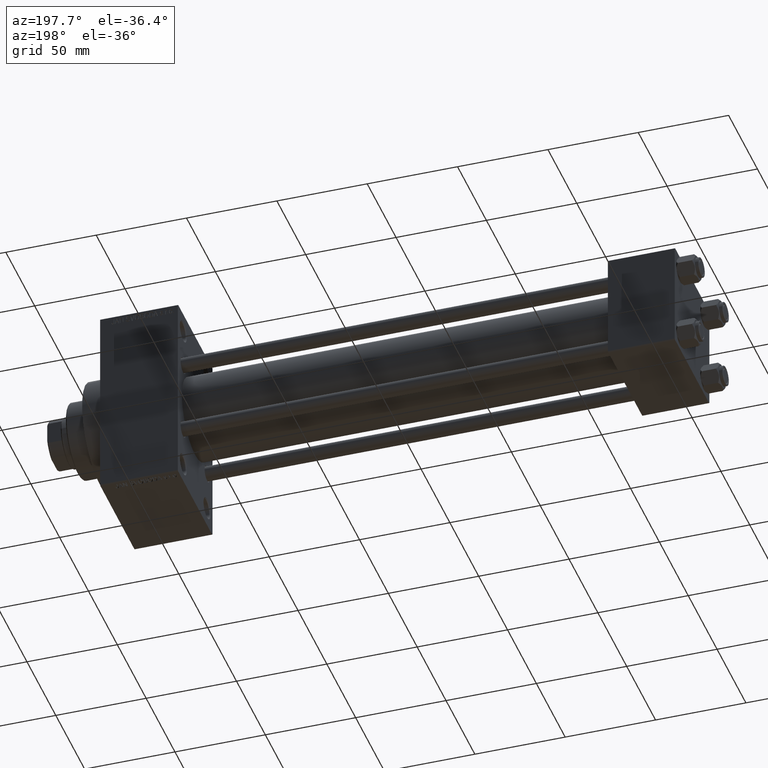
[diagram: clean part render]
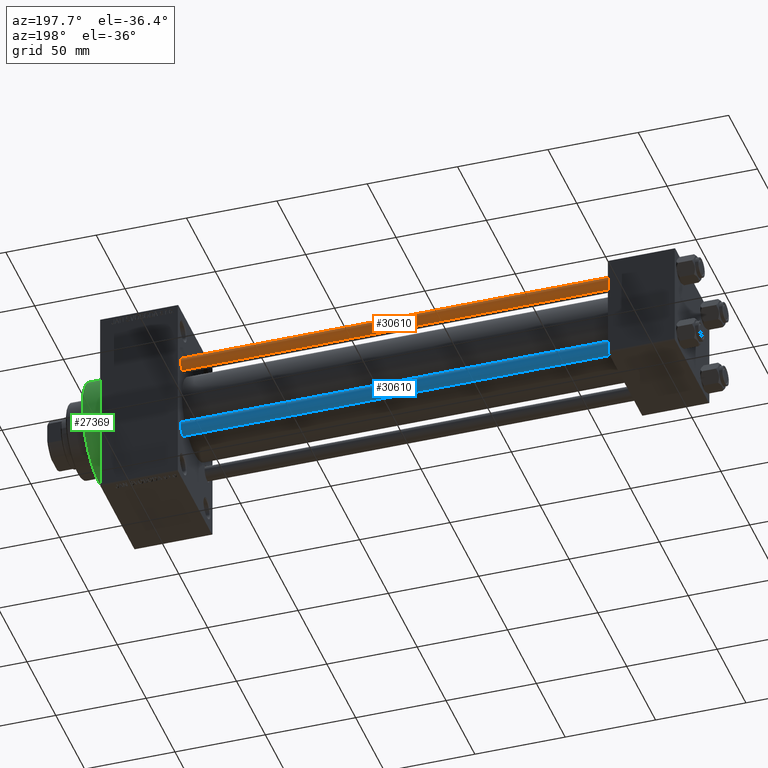
[diagram: same view with three faces highlighted in distinct colors, each labeled with its STEP entity id]
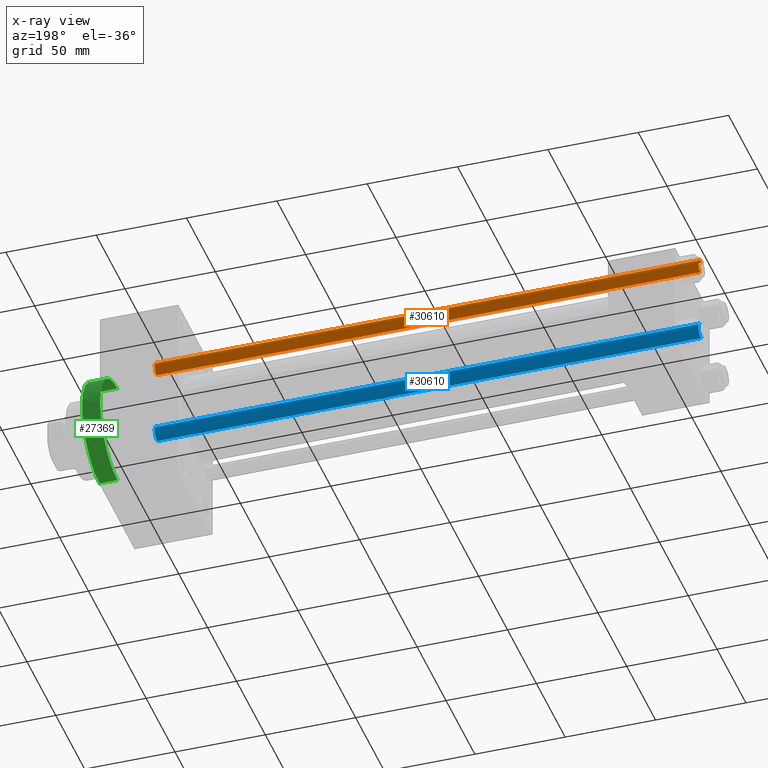
[diagram: x-ray of the same camera — body ghosted, the three highlighted faces saturated]
A machine part, auxiliary view with three faces highlighted in distinct colors.
The next image is the same camera in x-ray (body ghosted, the three faces saturated) — at least one of them is partly hidden behind the body in this view.
Their STEP definitions:

[orange] entity #30610 — the highlighted cylindrical surface (edge-blend (fillet) strip) has radius 4 mm, axis along (-1, -0, 0).
#1273 = CIRCLE ( 'NONE', #19674, 4.000000000000000000 ) ;
#4581 = ORIENTED_EDGE ( 'NONE', *, *, #41530, .T. ) ;
#5726 = DIRECTION ( 'NONE',  ( -0.000000000000000000, -0.000000000000000000, -1.000000000000000000 ) ) ;
#6467 = DIRECTION ( 'NONE',  ( 0.000000000000000000, 0.000000000000000000, -1.000000000000000000 ) ) ;
#6748 = DIRECTION ( 'NONE',  ( -0.000000000000000000, -0.000000000000000000, -1.000000000000000000 ) ) ;
#7374 = CARTESIAN_POINT ( 'NONE',  ( -4.000000000000000000, 0.000000000000000000, 301.4999999999999432 ) ) ;
#7476 = AXIS2_PLACEMENT_3D ( 'NONE', #17276, #6467, #10785 ) ;
#8388 = VECTOR ( 'NONE', #40869, 1000.000000000000000 ) ;
#10785 = DIRECTION ( 'NONE',  ( 1.000000000000000000, 0.000000000000000000, 0.000000000000000000 ) ) ;
#10844 = CARTESIAN_POINT ( 'NONE',  ( 4.000000000000000000, 4.898587196589412829E-16, 302.0000000000000000 ) ) ;
#12935 = CARTESIAN_POINT ( 'NONE',  ( -4.000000000000000000, 0.000000000000000000, 302.0000000000000000 ) ) ;
#13613 = CIRCLE ( 'NONE', #7476, 4.000000000000000000 ) ;
#14039 = EDGE_CURVE ( 'NONE', #35428, #35659, #1273, .T. ) ;
#14726 = AXIS2_PLACEMENT_3D ( 'NONE', #24787, #6748, #32710 ) ;
#16395 = CARTESIAN_POINT ( 'NONE',  ( 4.000000000000000000, 4.898587196589412829E-16, 301.4999999999999432 ) ) ;
#17276 = CARTESIAN_POINT ( 'NONE',  ( 0.000000000000000000, 0.000000000000000000, 301.4999999999999432 ) ) ;
#19674 = AXIS2_PLACEMENT_3D ( 'NONE', #41690, #23426, #34959 ) ;
#22221 = ORIENTED_EDGE ( 'NONE', *, *, #25039, .T. ) ;
#23426 = DIRECTION ( 'NONE',  ( -0.000000000000000000, -0.000000000000000000, 1.000000000000000000 ) ) ;
#23998 = LINE ( 'NONE', #12935, #26541 ) ;
#24301 = EDGE_LOOP ( 'NONE', ( #4581, #22221, #24857, #30912 ) ) ;
#24787 = CARTESIAN_POINT ( 'NONE',  ( 0.000000000000000000, 0.000000000000000000, 302.0000000000000000 ) ) ;
#24857 = ORIENTED_EDGE ( 'NONE', *, *, #14039, .T. ) ;
#25039 = EDGE_CURVE ( 'NONE', #44217, #35428, #28878, .T. ) ;
#26541 = VECTOR ( 'NONE', #5726, 1000.000000000000000 ) ;
#28878 = LINE ( 'NONE', #10844, #8388 ) ;
#29119 = FACE_OUTER_BOUND ( 'NONE', #24301, .T. ) ;
#30610 = ADVANCED_FACE ( 'NONE', ( #29119 ), #46662, .T. ) ;
#30912 = ORIENTED_EDGE ( 'NONE', *, *, #38513, .F. ) ;
#32710 = DIRECTION ( 'NONE',  ( -1.000000000000000000, 0.000000000000000000, 0.000000000000000000 ) ) ;
#33504 = VERTEX_POINT ( 'NONE', #7374 ) ;
#34959 = DIRECTION ( 'NONE',  ( 1.000000000000000000, 0.000000000000000000, 0.000000000000000000 ) ) ;
#35428 = VERTEX_POINT ( 'NONE', #36119 ) ;
#35659 = VERTEX_POINT ( 'NONE', #42082 ) ;
#36119 = CARTESIAN_POINT ( 'NONE',  ( 4.000000000000000000, 4.898587196589412829E-16, 0.5000000000000559552 ) ) ;
#38513 = EDGE_CURVE ( 'NONE', #33504, #35659, #23998, .T. ) ;
#40869 = DIRECTION ( 'NONE',  ( -0.000000000000000000, -0.000000000000000000, -1.000000000000000000 ) ) ;
#41530 = EDGE_CURVE ( 'NONE', #33504, #44217, #13613, .T. ) ;
#41690 = CARTESIAN_POINT ( 'NONE',  ( 0.000000000000000000, 0.000000000000000000, 0.5000000000000559552 ) ) ;
#42082 = CARTESIAN_POINT ( 'NONE',  ( -4.000000000000000000, 0.000000000000000000, 0.5000000000000559552 ) ) ;
#44217 = VERTEX_POINT ( 'NONE', #16395 ) ;
#46662 = CYLINDRICAL_SURFACE ( 'NONE', #14726, 4.000000000000000000 ) ;

[blue] entity #30610 — the highlighted cylindrical surface (edge-blend (fillet) strip) has radius 4 mm, axis along (1, -0, 0).
#1273 = CIRCLE ( 'NONE', #19674, 4.000000000000000000 ) ;
#4581 = ORIENTED_EDGE ( 'NONE', *, *, #41530, .T. ) ;
#5726 = DIRECTION ( 'NONE',  ( -0.000000000000000000, -0.000000000000000000, -1.000000000000000000 ) ) ;
#6467 = DIRECTION ( 'NONE',  ( 0.000000000000000000, 0.000000000000000000, -1.000000000000000000 ) ) ;
#6748 = DIRECTION ( 'NONE',  ( -0.000000000000000000, -0.000000000000000000, -1.000000000000000000 ) ) ;
#7374 = CARTESIAN_POINT ( 'NONE',  ( -4.000000000000000000, 0.000000000000000000, 301.4999999999999432 ) ) ;
#7476 = AXIS2_PLACEMENT_3D ( 'NONE', #17276, #6467, #10785 ) ;
#8388 = VECTOR ( 'NONE', #40869, 1000.000000000000000 ) ;
#10785 = DIRECTION ( 'NONE',  ( 1.000000000000000000, 0.000000000000000000, 0.000000000000000000 ) ) ;
#10844 = CARTESIAN_POINT ( 'NONE',  ( 4.000000000000000000, 4.898587196589412829E-16, 302.0000000000000000 ) ) ;
#12935 = CARTESIAN_POINT ( 'NONE',  ( -4.000000000000000000, 0.000000000000000000, 302.0000000000000000 ) ) ;
#13613 = CIRCLE ( 'NONE', #7476, 4.000000000000000000 ) ;
#14039 = EDGE_CURVE ( 'NONE', #35428, #35659, #1273, .T. ) ;
#14726 = AXIS2_PLACEMENT_3D ( 'NONE', #24787, #6748, #32710 ) ;
#16395 = CARTESIAN_POINT ( 'NONE',  ( 4.000000000000000000, 4.898587196589412829E-16, 301.4999999999999432 ) ) ;
#17276 = CARTESIAN_POINT ( 'NONE',  ( 0.000000000000000000, 0.000000000000000000, 301.4999999999999432 ) ) ;
#19674 = AXIS2_PLACEMENT_3D ( 'NONE', #41690, #23426, #34959 ) ;
#22221 = ORIENTED_EDGE ( 'NONE', *, *, #25039, .T. ) ;
#23426 = DIRECTION ( 'NONE',  ( -0.000000000000000000, -0.000000000000000000, 1.000000000000000000 ) ) ;
#23998 = LINE ( 'NONE', #12935, #26541 ) ;
#24301 = EDGE_LOOP ( 'NONE', ( #4581, #22221, #24857, #30912 ) ) ;
#24787 = CARTESIAN_POINT ( 'NONE',  ( 0.000000000000000000, 0.000000000000000000, 302.0000000000000000 ) ) ;
#24857 = ORIENTED_EDGE ( 'NONE', *, *, #14039, .T. ) ;
#25039 = EDGE_CURVE ( 'NONE', #44217, #35428, #28878, .T. ) ;
#26541 = VECTOR ( 'NONE', #5726, 1000.000000000000000 ) ;
#28878 = LINE ( 'NONE', #10844, #8388 ) ;
#29119 = FACE_OUTER_BOUND ( 'NONE', #24301, .T. ) ;
#30610 = ADVANCED_FACE ( 'NONE', ( #29119 ), #46662, .T. ) ;
#30912 = ORIENTED_EDGE ( 'NONE', *, *, #38513, .F. ) ;
#32710 = DIRECTION ( 'NONE',  ( -1.000000000000000000, 0.000000000000000000, 0.000000000000000000 ) ) ;
#33504 = VERTEX_POINT ( 'NONE', #7374 ) ;
#34959 = DIRECTION ( 'NONE',  ( 1.000000000000000000, 0.000000000000000000, 0.000000000000000000 ) ) ;
#35428 = VERTEX_POINT ( 'NONE', #36119 ) ;
#35659 = VERTEX_POINT ( 'NONE', #42082 ) ;
#36119 = CARTESIAN_POINT ( 'NONE',  ( 4.000000000000000000, 4.898587196589412829E-16, 0.5000000000000559552 ) ) ;
#38513 = EDGE_CURVE ( 'NONE', #33504, #35659, #23998, .T. ) ;
#40869 = DIRECTION ( 'NONE',  ( -0.000000000000000000, -0.000000000000000000, -1.000000000000000000 ) ) ;
#41530 = EDGE_CURVE ( 'NONE', #33504, #44217, #13613, .T. ) ;
#41690 = CARTESIAN_POINT ( 'NONE',  ( 0.000000000000000000, 0.000000000000000000, 0.5000000000000559552 ) ) ;
#42082 = CARTESIAN_POINT ( 'NONE',  ( -4.000000000000000000, 0.000000000000000000, 0.5000000000000559552 ) ) ;
#44217 = VERTEX_POINT ( 'NONE', #16395 ) ;
#46662 = CYLINDRICAL_SURFACE ( 'NONE', #14726, 4.000000000000000000 ) ;

[green] entity #27369 — the highlighted cylindrical surface (partial cylindrical patch) has radius 30 mm, axis along (-1, -0, -0).
#1137 = DIRECTION ( 'NONE',  ( 0.000000000000000000, 0.000000000000000000, -1.000000000000000000 ) ) ;
#1644 = VERTEX_POINT ( 'NONE', #46851 ) ;
#1939 = CIRCLE ( 'NONE', #14989, 30.00000000000000000 ) ;
#1962 = VERTEX_POINT ( 'NONE', #43601 ) ;
#4934 = EDGE_LOOP ( 'NONE', ( #16680, #21070, #35670, #44082, #28132 ) ) ;
#7732 = DIRECTION ( 'NONE',  ( 0.000000000000000000, 0.000000000000000000, -1.000000000000000000 ) ) ;
#8673 = VERTEX_POINT ( 'NONE', #10664 ) ;
#10178 = EDGE_CURVE ( 'NONE', #32246, #8673, #20308, .T. ) ;
#10278 = CYLINDRICAL_SURFACE ( 'NONE', #10772, 30.00000000000000000 ) ;
#10395 = CARTESIAN_POINT ( 'NONE',  ( 327.9999999999999432, 0.000000000000000000, 30.00000000000000000 ) ) ;
#10630 = AXIS2_PLACEMENT_3D ( 'NONE', #11708, #30694, #1137 ) ;
#10664 = CARTESIAN_POINT ( 'NONE',  ( 327.9999999999999432, 0.000000000000000000, 30.00000000000000000 ) ) ;
#10772 = AXIS2_PLACEMENT_3D ( 'NONE', #21092, #14359, #17735 ) ;
#10940 = EDGE_CURVE ( 'NONE', #1644, #31845, #1939, .T. ) ;
#11708 = CARTESIAN_POINT ( 'NONE',  ( 317.9999999999999432, 0.000000000000000000, 0.000000000000000000 ) ) ;
#14359 = DIRECTION ( 'NONE',  ( -1.000000000000000000, -0.000000000000000000, -0.000000000000000000 ) ) ;
#14394 = DIRECTION ( 'NONE',  ( 0.000000000000000000, 0.000000000000000000, -1.000000000000000000 ) ) ;
#14399 = CARTESIAN_POINT ( 'NONE',  ( 327.9999999999999432, 3.673940397442059178E-15, -30.00000000000000000 ) ) ;
#14989 = AXIS2_PLACEMENT_3D ( 'NONE', #30298, #45204, #7732 ) ;
#16390 = CARTESIAN_POINT ( 'NONE',  ( 317.9999999999999432, 30.00000000000000000, 0.000000000000000000 ) ) ;
#16680 = ORIENTED_EDGE ( 'NONE', *, *, #10178, .F. ) ;
#17735 = DIRECTION ( 'NONE',  ( 0.000000000000000000, 0.000000000000000000, 1.000000000000000000 ) ) ;
#20308 = CIRCLE ( 'NONE', #35686, 30.00000000000000000 ) ;
#21070 = ORIENTED_EDGE ( 'NONE', *, *, #33926, .T. ) ;
#21092 = CARTESIAN_POINT ( 'NONE',  ( 327.9999999999999432, 0.000000000000000000, 0.000000000000000000 ) ) ;
#24365 = DIRECTION ( 'NONE',  ( -1.000000000000000000, -0.000000000000000000, -0.000000000000000000 ) ) ;
#25469 = CARTESIAN_POINT ( 'NONE',  ( 327.9999999999999432, 0.000000000000000000, 0.000000000000000000 ) ) ;
#27369 = ADVANCED_FACE ( 'NONE', ( #36004 ), #10278, .T. ) ;
#28132 = ORIENTED_EDGE ( 'NONE', *, *, #36362, .F. ) ;
#29221 = CARTESIAN_POINT ( 'NONE',  ( 327.9999999999999432, 3.673940397442059178E-15, -30.00000000000000000 ) ) ;
#30298 = CARTESIAN_POINT ( 'NONE',  ( 317.9999999999999432, 0.000000000000000000, 0.000000000000000000 ) ) ;
#30694 = DIRECTION ( 'NONE',  ( 1.000000000000000000, 0.000000000000000000, 0.000000000000000000 ) ) ;
#31845 = VERTEX_POINT ( 'NONE', #16390 ) ;
#32246 = VERTEX_POINT ( 'NONE', #14399 ) ;
#33150 = VECTOR ( 'NONE', #39772, 1000.000000000000000 ) ;
#33926 = EDGE_CURVE ( 'NONE', #32246, #1644, #46759, .T. ) ;
#35670 = ORIENTED_EDGE ( 'NONE', *, *, #10940, .T. ) ;
#35686 = AXIS2_PLACEMENT_3D ( 'NONE', #25469, #47337, #14394 ) ;
#36004 = FACE_OUTER_BOUND ( 'NONE', #4934, .T. ) ;
#36362 = EDGE_CURVE ( 'NONE', #8673, #1962, #36365, .T. ) ;
#36365 = LINE ( 'NONE', #10395, #44842 ) ;
#39772 = DIRECTION ( 'NONE',  ( -1.000000000000000000, -0.000000000000000000, -0.000000000000000000 ) ) ;
#43601 = CARTESIAN_POINT ( 'NONE',  ( 317.9999999999999432, 0.000000000000000000, 30.00000000000000000 ) ) ;
#44082 = ORIENTED_EDGE ( 'NONE', *, *, #45601, .T. ) ;
#44432 = CIRCLE ( 'NONE', #10630, 30.00000000000000000 ) ;
#44842 = VECTOR ( 'NONE', #24365, 1000.000000000000000 ) ;
#45204 = DIRECTION ( 'NONE',  ( 1.000000000000000000, 0.000000000000000000, 0.000000000000000000 ) ) ;
#45601 = EDGE_CURVE ( 'NONE', #31845, #1962, #44432, .T. ) ;
#46759 = LINE ( 'NONE', #29221, #33150 ) ;
#46851 = CARTESIAN_POINT ( 'NONE',  ( 317.9999999999999432, 3.673940397442059178E-15, -30.00000000000000000 ) ) ;
#47337 = DIRECTION ( 'NONE',  ( 1.000000000000000000, 0.000000000000000000, 0.000000000000000000 ) ) ;